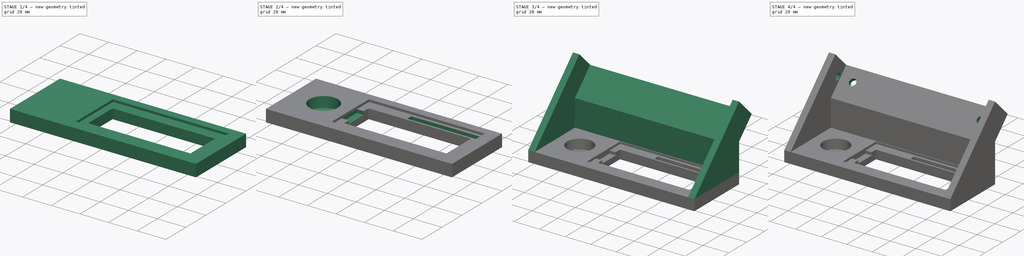
[diagram: build sequence overview — one tinted view per stage of 4, left to right]
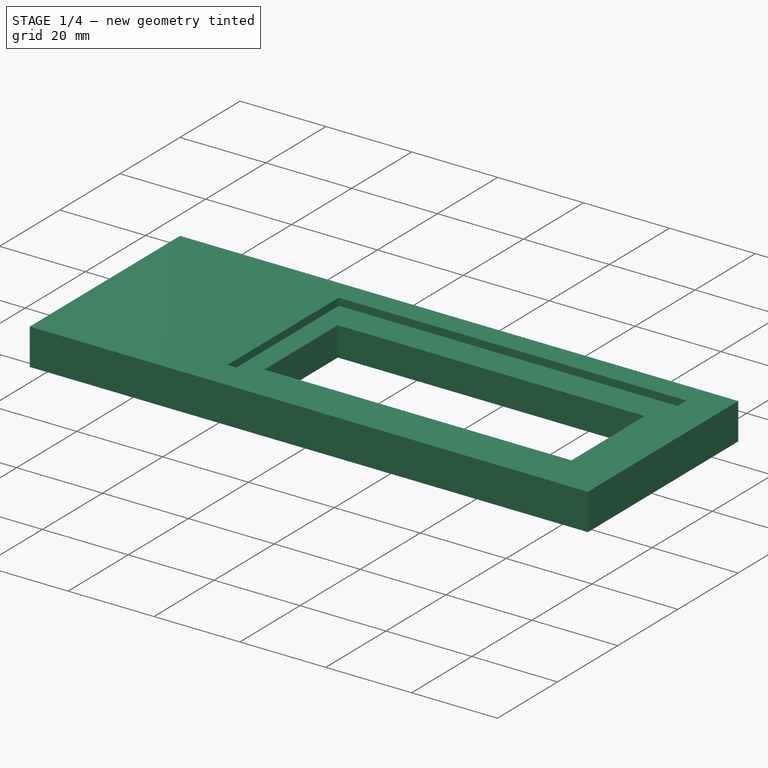
[diagram: stage 1 of 4 — iso view after this stage's code; geometry added in this stage tinted green]
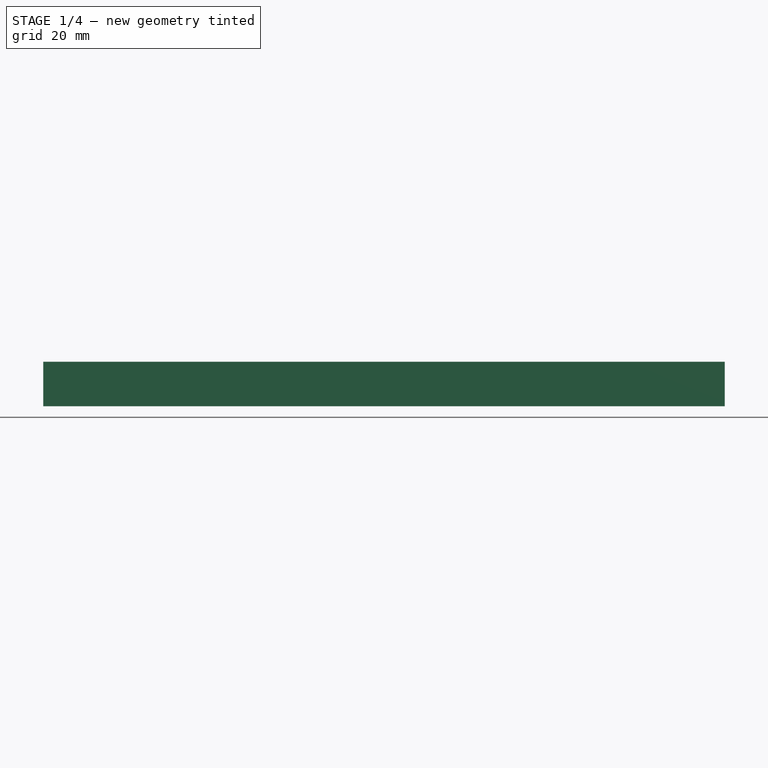
[diagram: stage 1 of 4 — front view after this stage's code; geometry added in this stage tinted green]
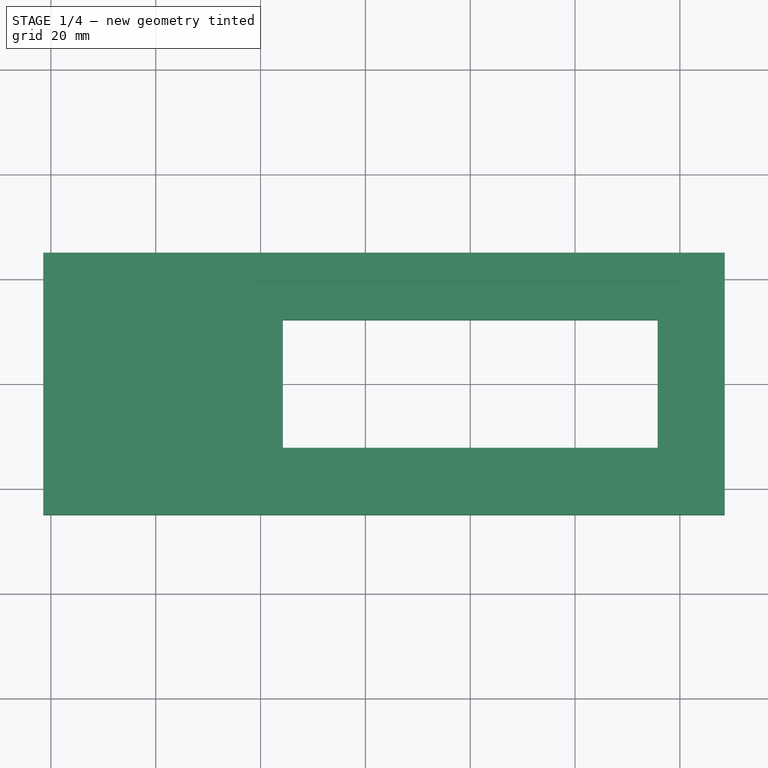
[diagram: stage 1 of 4 — top view after this stage's code; geometry added in this stage tinted green]
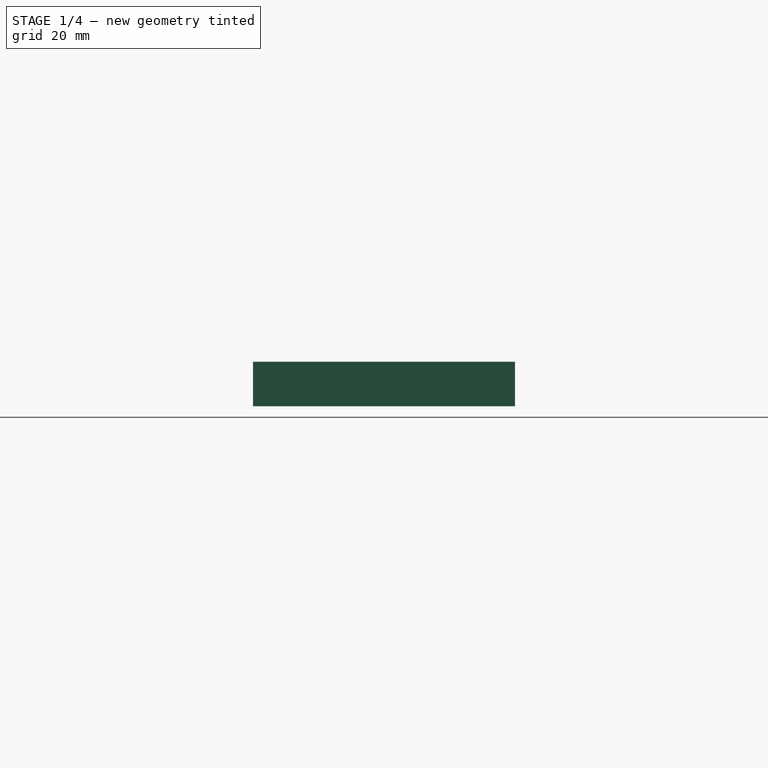
[diagram: stage 1 of 4 — right view after this stage's code; geometry added in this stage tinted green]
FCSTD DOCUMENT  (FreeCAD 0.20R29177 (Git))
Label: HMI screen button
License: All rights reserved
LicenseURL: http://en.wikipedia.org/wiki/All_rights_reserved
objects: Sketcher::SketchObject×9, PartDesign::Pocket×6, PartDesign::Pad×2, PartDesign::Hole×1, PartDesign::Body×1
note: 28 computed .brp shape members not serialized (recipe doc carries the construction recipe); baked Part::Feature solids carry a one-line shape summary decoded from their .brp

FEATURE [Sketcher::SketchObject] Sketch
  FullyConstrained = true
  MapMode = 5
  Support = -> [XY_Plane]
  sketch-geometry (12):
    g0: LineSegment StartX=-35.75 StartY=-12.2 StartZ=0 EndX=-35.75 EndY=12.2 EndZ=0
    g1: LineSegment StartX=-35.75 StartY=12.2 StartZ=0 EndX=35.75 EndY=12.2 EndZ=0
    g2: LineSegment StartX=35.75 StartY=12.2 StartZ=0 EndX=35.75 EndY=-12.2 EndZ=0
    g3: LineSegment StartX=35.75 StartY=-12.2 StartZ=0 EndX=-35.75 EndY=-12.2 EndZ=0
    g4: GeomPoint X=0 Y=0 Z=0
    g5: GeomPoint X=0 Y=0 Z=0
    g6: LineSegment StartX=48.55 StartY=25 StartZ=0 EndX=-81.45 EndY=25 EndZ=0
    g7: LineSegment StartX=-81.45 StartY=25 StartZ=0 EndX=-81.45 EndY=-25 EndZ=0
    g8: LineSegment StartX=-81.45 StartY=-25 StartZ=0 EndX=48.55 EndY=-25 EndZ=0
    g9: LineSegment StartX=48.55 StartY=-25 StartZ=0 EndX=48.55 EndY=25 EndZ=0
    g10: LineSegment StartX=35.75 StartY=12.2 StartZ=0 EndX=35.75 EndY=25 EndZ=0
    g11: LineSegment StartX=35.75 StartY=12.2 StartZ=0 EndX=48.55 EndY=12.2 EndZ=0
  constraints (30):
    c: Coincident(g0,g1)
    c: Coincident(g1,g2)
    c: Coincident(g2,g3)
    c: Coincident(g3,g0)
    c: Horizontal(g1)
    c: Horizontal(g3)
    c: Vertical(g0)
    c: Vertical(g2)
    c: Symmetric(g1,g0,g4)
    c: Coincident(g4,g-1)
    c: Coincident(g5,g4)
    c: DistanceX(g1,g1) = 71.5
    c: DistanceY(g2,g2) = 24.4
    c: Coincident(g6,g7)
    c: Coincident(g7,g8)
    c: Coincident(g8,g9)
    c: Coincident(g9,g6)
    c: Horizontal(g6)
    c: Horizontal(g8)
    c: Vertical(g7)
    c: DistanceY(g9,g9) = 50
    c: DistanceX(g6,g6) = 130
    c: Symmetric(g6,g8,g-1)
    c: Coincident(g10,g1)
    c: PointOnObject(g10,g6)
    c: Vertical(g10)
    c: Coincident(g11,g1)
    c: PointOnObject(g11,g9)
    c: Horizontal(g11)
    c: Equal(g10,g11)
FEATURE [PartDesign::Pad] Pad
  Direction = (0,0,1)
  Length = 8.5
  Length2 = 10
  Profile = -> Sketch
  ReferenceAxis = -> Sketch [N_Axis]
  Reversed = true
  Type = 0
FEATURE [Sketcher::SketchObject] Sketch001
  ExternalGeometry = -> [Pad]
  FullyConstrained = true
  MapMode = 5
  Support = -> [XY_Plane]
  sketch-geometry (4):
    g0: LineSegment StartX=-40.65 StartY=19.5 StartZ=0 EndX=40.35 EndY=19.5 EndZ=0
    g1: LineSegment StartX=40.35 StartY=19.5 StartZ=0 EndX=40.35 EndY=-17.5 EndZ=0
    g2: LineSegment StartX=40.35 StartY=-17.5 StartZ=0 EndX=-40.65 EndY=-17.5 EndZ=0
    g3: LineSegment StartX=-40.65 StartY=-17.5 StartZ=0 EndX=-40.65 EndY=19.5 EndZ=0
  constraints (12):
    c: Coincident(g0,g1)
    c: Coincident(g1,g2)
    c: Coincident(g2,g3)
    c: Coincident(g3,g0)
    c: Horizontal(g0)
    c: Horizontal(g2)
    c: Vertical(g1)
    c: Vertical(g3)
    c: DistanceX(g0,g0) = 81
    c: DistanceY(g1,g1) = 37
    c: DistanceY(g-3,g0) = 7.3
    c: DistanceX(g-3,g0) = 4.6
FEATURE [PartDesign::Pocket] Pocket
  BaseFeature = -> Pad
  Direction = (0,0,-1)
  Length = 1.7
  Length2 = 5
  Profile = -> Sketch001
  ReferenceAxis = -> Sketch001 [N_Axis]
  Type = 0
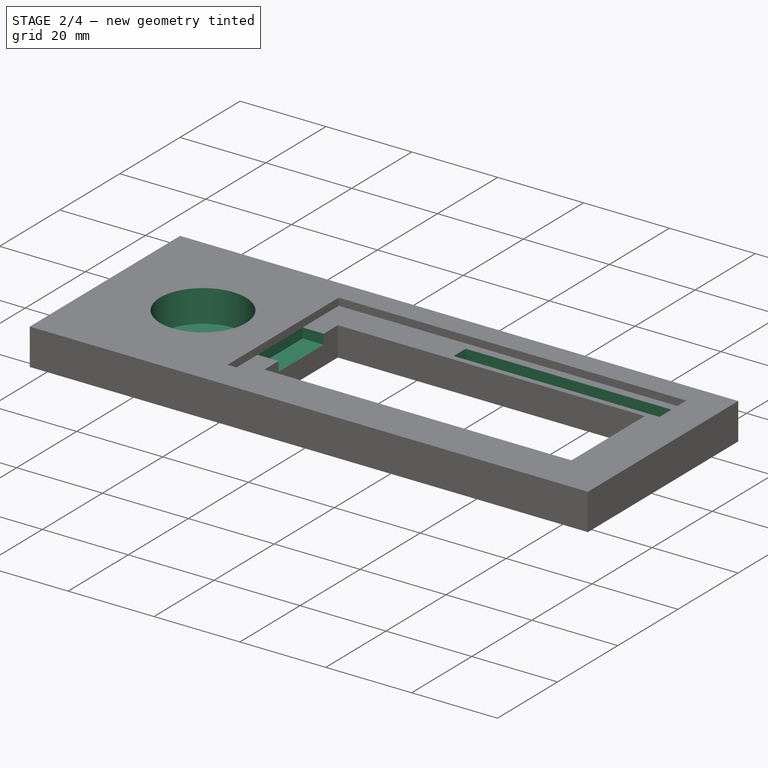
[diagram: stage 2 of 4 — iso view after this stage's code; geometry added in this stage tinted green]
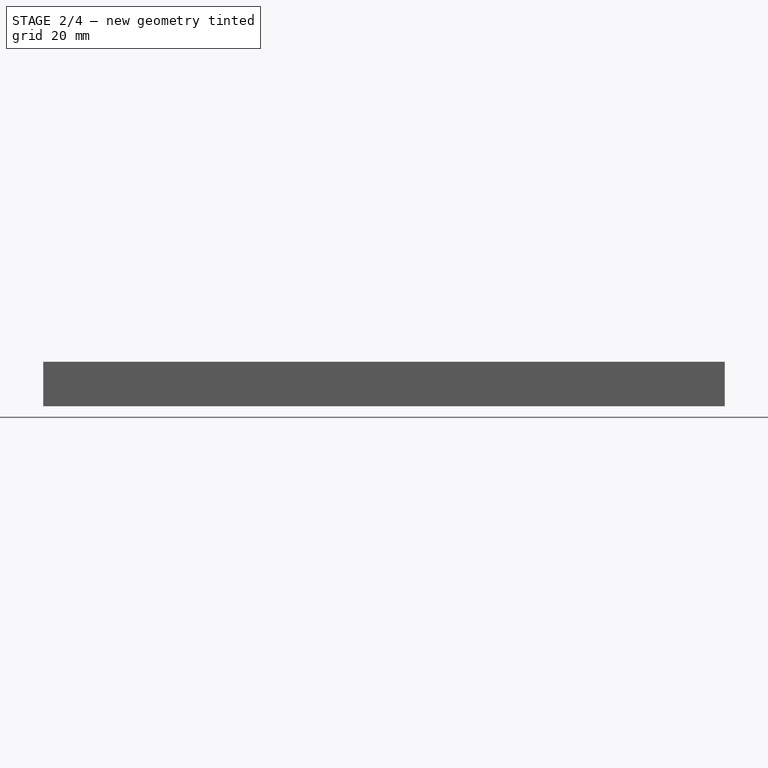
[diagram: stage 2 of 4 — front view after this stage's code; geometry added in this stage tinted green]
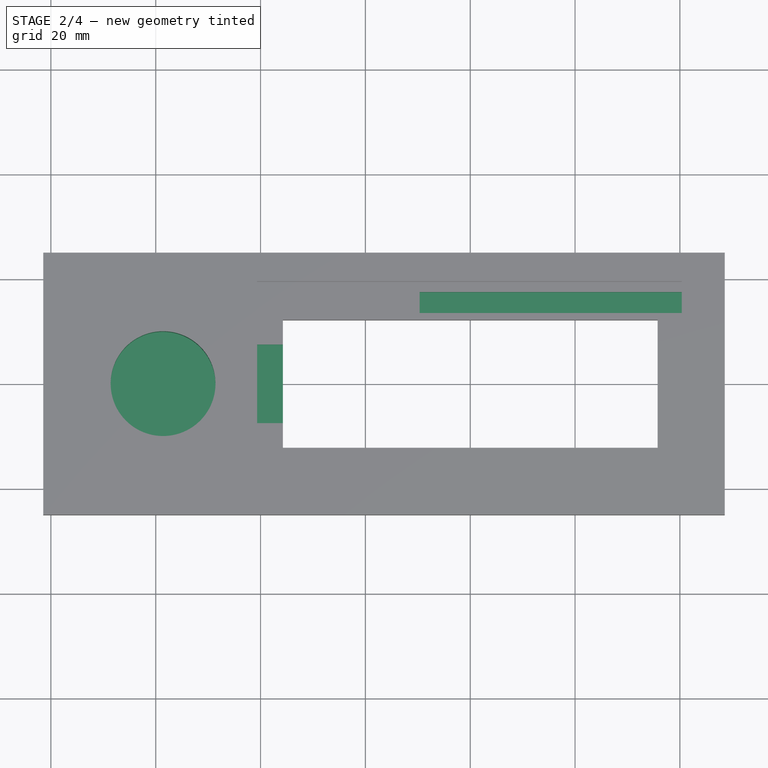
[diagram: stage 2 of 4 — top view after this stage's code; geometry added in this stage tinted green]
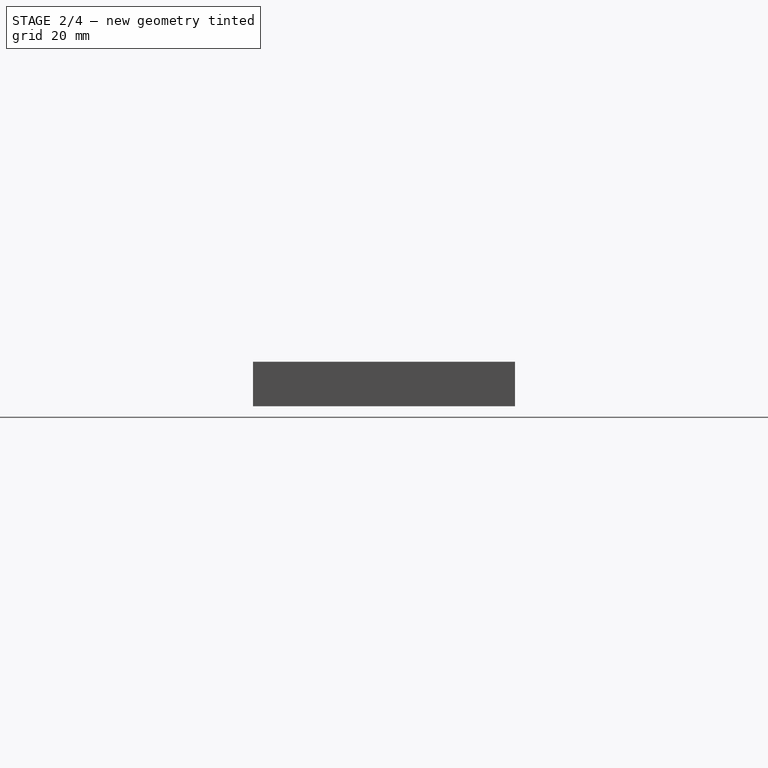
[diagram: stage 2 of 4 — right view after this stage's code; geometry added in this stage tinted green]
FEATURE [Sketcher::SketchObject] Sketch002
  ExternalGeometry = -> [Pocket]
  FullyConstrained = false
  MapMode = 5
  Support = -> [XY_Plane]
  sketch-geometry (8):
    g0: LineSegment StartX=-40.65 StartY=7.5 StartZ=0 EndX=-33.2805 EndY=7.5 EndZ=0
    g1: LineSegment StartX=-33.2805 StartY=7.5 StartZ=0 EndX=-33.2805 EndY=-7.5 EndZ=0
    g2: LineSegment StartX=-33.2805 StartY=-7.5 StartZ=0 EndX=-40.65 EndY=-7.5 EndZ=0
    g3: LineSegment StartX=-40.65 StartY=-7.5 StartZ=0 EndX=-40.65 EndY=7.5 EndZ=0
    g4: LineSegment StartX=40.35 StartY=17.5 StartZ=0 EndX=-9.65 EndY=17.5 EndZ=0
    g5: LineSegment StartX=-9.65 StartY=17.5 StartZ=0 EndX=-9.65 EndY=13.5 EndZ=0
    g6: LineSegment StartX=-9.65 StartY=13.5 StartZ=0 EndX=40.35 EndY=13.5 EndZ=0
    g7: LineSegment StartX=40.35 StartY=13.5 StartZ=0 EndX=40.35 EndY=17.5 EndZ=0
  constraints (19):
    c: Coincident(g0,g1)
    c: Coincident(g1,g2)
    c: Coincident(g2,g3)
    c: Coincident(g3,g0)
    c: Horizontal(g0)
    c: Horizontal(g2)
    c: Vertical(g3)
    c: DistanceY(g1,g1) = 15
    c: Symmetric(g1,g0,g-1)
    c: Coincident(g4,g5)
    c: Coincident(g5,g6)
    c: Coincident(g6,g7)
    c: Coincident(g7,g4)
    c: Horizontal(g4)
    c: Horizontal(g6)
    c: Vertical(g5)
    c: Vertical(g7)
    c: DistanceY(g5,g5) = 4
    c: DistanceX(g6,g6) = 50
FEATURE [PartDesign::Pocket] Pocket001
  BaseFeature = -> Pocket
  Direction = (0,0,-1)
  Length = 4
  Length2 = 5
  Profile = -> Sketch002
  ReferenceAxis = -> Sketch002 [N_Axis]
  Type = 0
FEATURE [Sketcher::SketchObject] Sketch003
  ExternalGeometry = -> [Pocket001]
  FullyConstrained = true
  MapMode = 5
  Support = -> [XY_Plane]
  sketch-geometry (3):
    g0: Circle CenterX=-58.6 CenterY=0 CenterZ=0 NormalX=0 NormalY=0 NormalZ=1 AngleXU=0 Radius=10
    g1: LineSegment StartX=-81.45 StartY=0 StartZ=0 EndX=-58.6 EndY=0 EndZ=0
    g2: LineSegment StartX=-58.6 StartY=0 StartZ=0 EndX=-35.75 EndY=0 EndZ=0
  constraints (9):
    c: PointOnObject(g0,g-1)
    c: Diameter(g0) = 20
    c: PointOnObject(g1,g-3)
    c: Coincident(g1,g0)
    c: Horizontal(g1)
    c: Coincident(g2,g0)
    c: PointOnObject(g2,g-4)
    c: Horizontal(g2)
    c: Equal(g2,g1)
FEATURE [PartDesign::Pocket] Pocket002
  BaseFeature = -> Pocket001
  Direction = (0,0,-1)
  Length = 7.5
  Length2 = 5
  Profile = -> Sketch003
  ReferenceAxis = -> Sketch003 [N_Axis]
  Type = 0
  expr: Length = 8.5 - 1
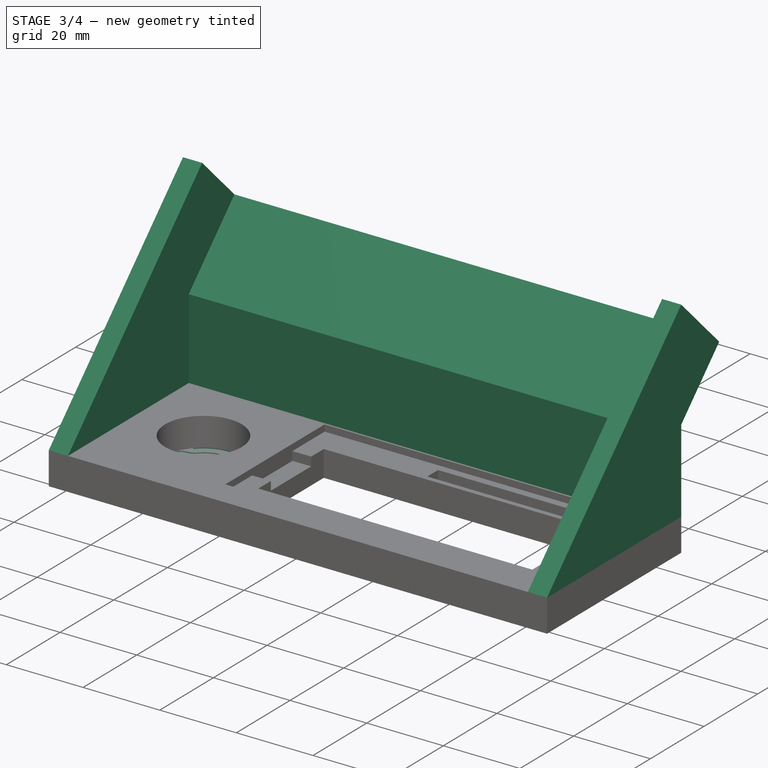
[diagram: stage 3 of 4 — iso view after this stage's code; geometry added in this stage tinted green]
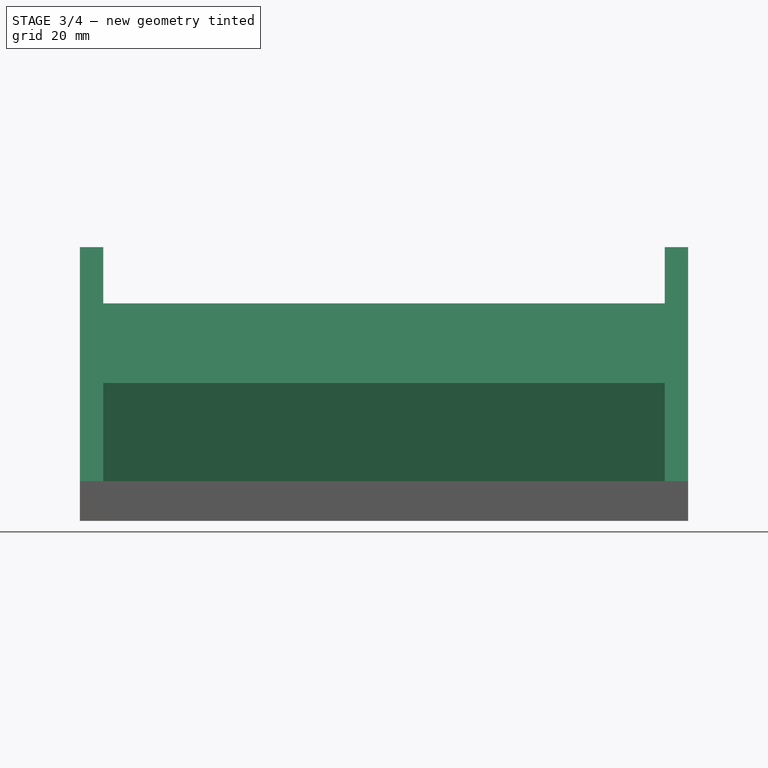
[diagram: stage 3 of 4 — front view after this stage's code; geometry added in this stage tinted green]
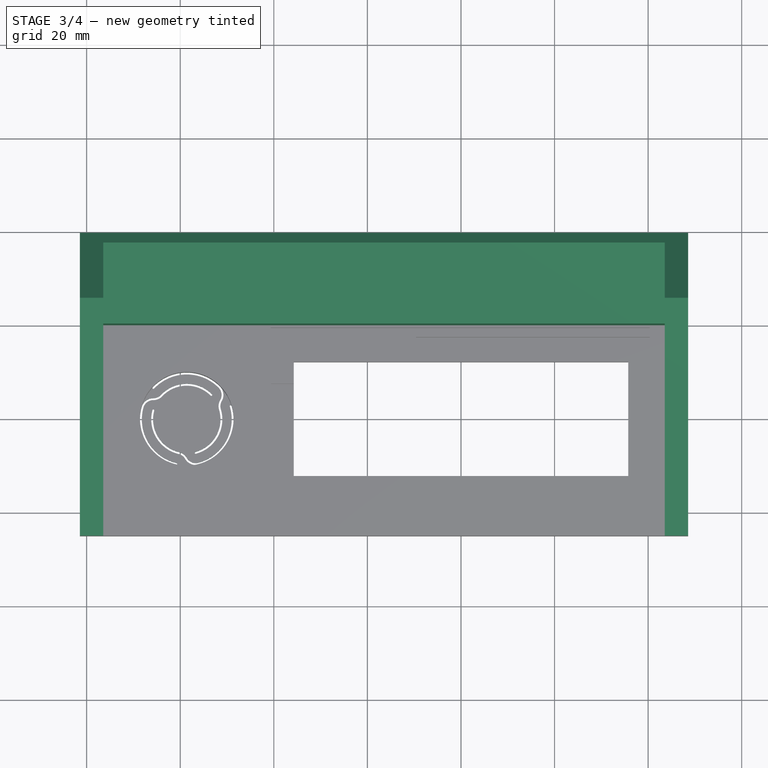
[diagram: stage 3 of 4 — top view after this stage's code; geometry added in this stage tinted green]
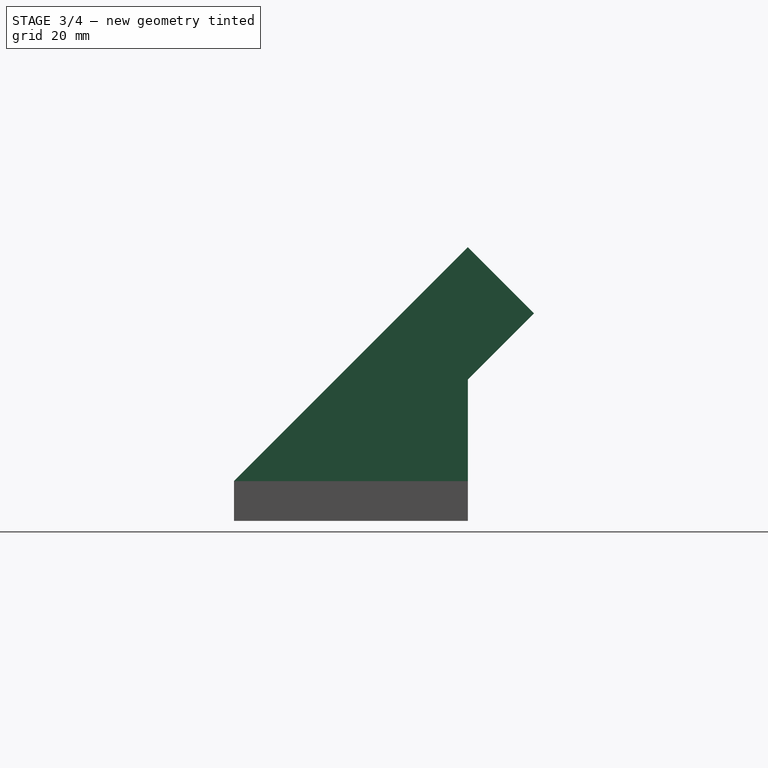
[diagram: stage 3 of 4 — right view after this stage's code; geometry added in this stage tinted green]
FEATURE [Sketcher::SketchObject] Sketch004
  ExternalGeometry = -> [Pocket002]
  FullyConstrained = false
  MapMode = 5
  Support = -> [XY_Plane]
  sketch-geometry (40):
    g0: LineSegment StartX=-58.6 StartY=-1.474e-13 StartZ=0 EndX=-58.6 EndY=9.6 EndZ=0
    g1: ArcOfCircle CenterX=-58.6 CenterY=-1.474e-13 CenterZ=0 NormalX=0 NormalY=0 NormalZ=1 AngleXU=0 Radius=7.6 StartAngle=0.784469 EndAngle=2.38574
    g2: LineSegment StartX=-49 StartY=0 StartZ=0 EndX=-48.6 EndY=0 EndZ=0
    g3: ArcOfCircle CenterX=-53.3625 CenterY=5.22772 CenterZ=0 NormalX=0 NormalY=0 NormalZ=1 AngleXU=0 Radius=0.2 StartAngle=3.92606 EndAngle=7.06765
    g4: LineSegment StartX=-51 StartY=0 StartZ=0 EndX=-51.4 EndY=0 EndZ=0
    g5: LineSegment StartX=-51 StartY=0 StartZ=0 EndX=-49 EndY=0 EndZ=0
    g6: Circle CenterX=-58.6 CenterY=-1.474e-13 CenterZ=0 NormalX=0 NormalY=0 NormalZ=1 AngleXU=0 Radius=9.6
    g7: Circle CenterX=-58.6 CenterY=-1.474e-13 CenterZ=0 NormalX=0 NormalY=0 NormalZ=1 AngleXU=0 Radius=7.6
    g8: ArcOfCircle CenterX=-49.213 CenterY=2.815 CenterZ=0 NormalX=0 NormalY=0 NormalZ=1 AngleXU=0 Radius=0.2 StartAngle=0.291349 EndAngle=3.43294
    g9: ArcOfCircle CenterX=-49.213 CenterY=2.815 CenterZ=0 NormalX=0 NormalY=0 NormalZ=1 AngleXU=0 Radius=2.2 StartAngle=2.61493 EndAngle=3.43294
    g10: ArcOfCircle CenterX=-58.6 CenterY=-1.474e-13 CenterZ=0 NormalX=0 NormalY=0 NormalZ=1 AngleXU=0 Radius=9.6 StartAngle=4.97326 EndAngle=6.57453
    g11: ArcOfCircle CenterX=-58.6 CenterY=-1.474e-13 CenterZ=0 NormalX=0 NormalY=0 NormalZ=1 AngleXU=0 Radius=7.6 StartAngle=4.97326 EndAngle=6.57453
    g12: ArcOfCircle CenterX=-49.213 CenterY=2.815 CenterZ=0 NormalX=0 NormalY=0 NormalZ=1 AngleXU=0 Radius=2.6 StartAngle=2.61493 EndAngle=3.43294
    g13: Circle CenterX=-58.6 CenterY=-1.474e-13 CenterZ=0 NormalX=0 NormalY=0 NormalZ=1 AngleXU=0 Radius=7.2
    g14: ArcOfCircle CenterX=-56.6914 CenterY=-7.14963 CenterZ=0 NormalX=0 NormalY=0 NormalZ=1 AngleXU=0 Radius=0.2 StartAngle=1.83167 EndAngle=4.97326
    g15: ArcOfCircle CenterX=-56.6914 CenterY=-7.14963 CenterZ=0 NormalX=0 NormalY=0 NormalZ=1 AngleXU=0 Radius=2.2 StartAngle=3.66213 EndAngle=4.97326
    g16: ArcOfCircle CenterX=-60.8556 CenterY=-9.53688 CenterZ=0 NormalX=0 NormalY=0 NormalZ=1 AngleXU=0 Radius=0.2 StartAngle=4.48014 EndAngle=7.62173
    g17: ArcOfCircle CenterX=-60.8556 CenterY=-9.53688 CenterZ=0 NormalX=0 NormalY=0 NormalZ=1 AngleXU=0 Radius=2.6 StartAngle=0.520535 EndAngle=1.33855
    g18: ArcOfCircle CenterX=-58.6 CenterY=-1.474e-13 CenterZ=0 NormalX=0 NormalY=0 NormalZ=1 AngleXU=0 Radius=7.2 StartAngle=4.97326 EndAngle=6.57453
    g19: ArcOfCircle CenterX=-60.8556 CenterY=-9.53688 CenterZ=0 NormalX=0 NormalY=0 NormalZ=1 AngleXU=0 Radius=2.2 StartAngle=0.520535 EndAngle=1.33855
    g20: ArcOfCircle CenterX=-53.3625 CenterY=5.22772 CenterZ=0 NormalX=0 NormalY=0 NormalZ=1 AngleXU=0 Radius=2.2 StartAngle=5.75652 EndAngle=7.06765
    g21: LineSegment StartX=-51.4607 StartY=4.12189 StartZ=0 EndX=-58.6 EndY=-1.474e-13 EndZ=0
    g22: LineSegment StartX=-58.6 StartY=-8.24379 StartZ=0 EndX=-58.6 EndY=-1.474e-13 EndZ=0
    g23: ArcOfCircle CenterX=-65.7314 CenterY=6.72188 CenterZ=0 NormalX=0 NormalY=0 NormalZ=1 AngleXU=0 Radius=0.2 StartAngle=2.38574 EndAngle=5.52734
    g24: ArcOfCircle CenterX=-58.6 CenterY=-1.474e-13 CenterZ=0 NormalX=0 NormalY=0 NormalZ=1 AngleXU=0 Radius=9.6 StartAngle=2.87886 EndAngle=4.48014
    g25: ArcOfCircle CenterX=-65.7314 CenterY=6.72188 CenterZ=0 NormalX=0 NormalY=0 NormalZ=1 AngleXU=0 Radius=2.6 StartAngle=4.70933 EndAngle=5.52734
    g26: ArcOfCircle CenterX=-65.7461 CenterY=1.9219 CenterZ=0 NormalX=0 NormalY=0 NormalZ=1 AngleXU=0 Radius=0.2 StartAngle=6.02046 EndAngle=9.16205
    g27: ArcOfCircle CenterX=-65.7461 CenterY=1.9219 CenterZ=0 NormalX=0 NormalY=0 NormalZ=1 AngleXU=0 Radius=2.2 StartAngle=1.56773 EndAngle=2.87886
    g28: LineSegment StartX=-65.7393 StartY=4.12189 StartZ=0 EndX=-58.6 EndY=-1.474e-13 EndZ=0
    g29: ArcOfCircle CenterX=-58.6 CenterY=-1.474e-13 CenterZ=0 NormalX=0 NormalY=0 NormalZ=1 AngleXU=0 Radius=7.2 StartAngle=2.87886 EndAngle=4.48014
    g30: ArcOfCircle CenterX=-58.6 CenterY=-1.474e-13 CenterZ=0 NormalX=0 NormalY=0 NormalZ=1 AngleXU=0 Radius=7.6 StartAngle=2.87886 EndAngle=4.48014
    g31: ArcOfCircle CenterX=-58.6 CenterY=-1.474e-13 CenterZ=0 NormalX=0 NormalY=0 NormalZ=1 AngleXU=0 Radius=7.2 StartAngle=0.784469 EndAngle=2.38574
    g32: ArcOfCircle CenterX=-65.7314 CenterY=6.72188 CenterZ=0 NormalX=0 NormalY=0 NormalZ=1 AngleXU=0 Radius=2.2 StartAngle=4.70933 EndAngle=5.52734
    g33: ArcOfCircle CenterX=-58.6 CenterY=-1.474e-13 CenterZ=0 NormalX=0 NormalY=0 NormalZ=1 AngleXU=0 Radius=10 StartAngle=0.784469 EndAngle=2.38574
    g34: ArcOfCircle CenterX=-58.6 CenterY=-1.474e-13 CenterZ=0 NormalX=0 NormalY=0 NormalZ=1 AngleXU=0 Radius=10 StartAngle=4.97326 EndAngle=6.57453
    g35: ArcOfCircle CenterX=-58.6 CenterY=-1.474e-13 CenterZ=0 NormalX=0 NormalY=0 NormalZ=1 AngleXU=0 Radius=10 StartAngle=2.87886 EndAngle=4.48014
    g36: ArcOfCircle CenterX=-58.6 CenterY=-1.474e-13 CenterZ=0 NormalX=0 NormalY=0 NormalZ=1 AngleXU=0 Radius=9.6 StartAngle=0.784469 EndAngle=2.38574
    g37: ArcOfCircle CenterX=-53.3625 CenterY=5.22772 CenterZ=0 NormalX=0 NormalY=0 NormalZ=1 AngleXU=0 Radius=2.6 StartAngle=5.75652 EndAngle=7.06765
    g38: ArcOfCircle CenterX=-65.7461 CenterY=1.9219 CenterZ=0 NormalX=0 NormalY=0 NormalZ=1 AngleXU=0 Radius=2.6 StartAngle=1.56773 EndAngle=2.87886
    g39: ArcOfCircle CenterX=-56.6914 CenterY=-7.14963 CenterZ=0 NormalX=0 NormalY=0 NormalZ=1 AngleXU=0 Radius=2.6 StartAngle=3.66213 EndAngle=4.97326
  constraints (102):
    c: Vertical(g0)
    c: PointOnObject(g2,g-1)
    c: Horizontal(g2)
    c: Horizontal(g4)
    c: DistanceX(g2,g2) = 0.4
    c: Coincident(g5,g4)
    c: Coincident(g5,g2)
    c: Horizontal(g5)
    c: Equal(g4,g2)
    c: DistanceX(g5,g5) = 2
    c: Tangent(g1,g3) = -1.5708
    c: PointOnObject(g2,g6)
    c: PointOnObject(g4,g7)
    c: Coincident(g9,g8)
    c: Tangent(g9,g7) = 1.5708
    c: Tangent(g8,g6) = 1.5708
    c: Coincident(g8,g10)
    c: Coincident(g11,g9)
    c: Coincident(g12,g8)
    c: PointOnObject(g4,g13)
    c: Tangent(g12,g13) = 1.5708
    c: Tangent(g3,g13) = 1.5708
    c: Coincident(g0,g1)
    c: Coincident(g0,g6)
    c: Coincident(g0,g7)
    c: Coincident(g0,g10)
    c: Coincident(g0,g11)
    c: Coincident(g0,g13)
    c: Coincident(g0,g-3)
    c: Tangent(g8,g-3) = -1.5708
    c: Coincident(g15,g14)
    c: Tangent(g15,g6) = -1.5708
    c: Coincident(g15,g10)
    c: Coincident(g17,g16)
    c: Tangent(g17,g13) = 1.5708
    c: Tangent(g15,g17) = 1.5708
    c: Coincident(g18,g1)
    c: Coincident(g18,g12)
    c: Tangent(g14,g7) = -1.5708
    c: Coincident(g19,g16)
    c: Tangent(g19,g7) = 1.5708
    c: Coincident(g20,g3)
    c: Tangent(g20,g6) = -1.5708
    c: Tangent(g12,g20) = 1.5708
    c: Tangent(g16,g6) = 1.5708
    c: Tangent(g16,g-3) = -1.5708
    c: Coincident(g11,g14)
    c: Coincident(g12,g20)
    c: Coincident(g21,g12)
    c: Coincident(g21,g1)
    c: Angle(g21,g0) = 1.0472
    c: Coincident(g22,g15)
    c: Coincident(g22,g1)
    c: Angle(g22,g21) = 2.0944
    c: Coincident(g24,g1)
    c: Coincident(g24,g16)
    c: Tangent(g23,g6) = 1.5708
    c: Tangent(g23,g-3) = -1.5708
    c: Coincident(g25,g23)
    c: Coincident(g27,g26)
    c: Tangent(g25,g27) = 1.5708
    c: Coincident(g28,g25)
    c: Coincident(g28,g1)
    c: Angle(g0,g28) = 1.0472
    c: Tangent(g27,g6) = -1.5708
    c: Tangent(g25,g13) = 1.5708
    c: Coincident(g24,g27)
    c: Coincident(g29,g1)
    c: Coincident(g29,g17)
    c: Coincident(g30,g1)
    c: Coincident(g30,g19)
    c: Tangent(g26,g7) = -1.5708
    c: Tangent(g26,g13) = 1.5708
    c: Coincident(g31,g1)
    c: Coincident(g31,g3)
    c: Coincident(g31,g25)
    c: Coincident(g32,g23)
    c: Tangent(g32,g7) = 1.5708
    c: Coincident(g1,g32)
    c: Coincident(g33,g1)
    c: Coincident(g33,g23)
    c: Coincident(g34,g1)
    c: Coincident(g34,g8)
    c: Coincident(g35,g1)
    c: Coincident(g35,g16)
    c: Tangent(g14,g18) = 1.5708
    c: Coincident(g36,g1)
    c: Coincident(g36,g23)
    c: Coincident(g36,g20)
    c: Coincident(g26,g30)
    c: Coincident(g26,g29)
    c: Coincident(g37,g3)
    c: Coincident(g37,g33)
    c: Tangent(g37,g9) = 1.5708
    c: Coincident(g38,g26)
    c: Coincident(g35,g38)
    c: Tangent(g38,g32) = 1.5708
    c: Coincident(g39,g14)
    c: Tangent(g34,g39) = -1.5708
    c: Tangent(g39,g19) = 1.5708
    c: PointOnObject(g39,g-3)
    c: Coincident(g34,g39)
FEATURE [PartDesign::Pocket] Pocket003
  BaseFeature = -> Pocket002
  Direction = (0,0,-1)
  Length = 5
  Length2 = 5
  Profile = -> Sketch004
  ReferenceAxis = -> Sketch004 [N_Axis]
  Type = 1
FEATURE [Sketcher::SketchObject] Sketch005
  FullyConstrained = true
  MapMode = 5
  Placement = pos=(0,0,0) rot=(0.57735,0.57735,0.57735;2.0944rad)
  Support = -> [YZ_Plane]
  sketch-geometry (9):
    g0: LineSegment StartX=-25 StartY=0 StartZ=0 EndX=0 EndY=0 EndZ=0
    g1: LineSegment StartX=0 StartY=0 StartZ=0 EndX=25 EndY=0 EndZ=0
    g2: LineSegment StartX=-25 StartY=0 StartZ=0 EndX=10.8579 EndY=35.8579 EndZ=0
    g3: LineSegment StartX=25 StartY=0 StartZ=0 EndX=25 EndY=21.7157 EndZ=0
    g4: LineSegment StartX=10.8579 StartY=35.8579 StartZ=0 EndX=25 EndY=21.7157 EndZ=0
    g5: LineSegment StartX=10.8579 StartY=35.8579 StartZ=0 EndX=25 EndY=50 EndZ=0
    g6: LineSegment StartX=25 StartY=50 StartZ=0 EndX=39.1421 EndY=35.8579 EndZ=0
    g7: LineSegment StartX=39.1421 StartY=35.8579 StartZ=0 EndX=25 EndY=21.7157 EndZ=0
    g8: LineSegment StartX=25 StartY=21.7157 StartZ=0 EndX=45 EndY=21.7157 EndZ=0
  constraints (24):
    c: Coincident(g0,g-1)
    c: Coincident(g1,g0)
    c: Equal(g0,g1)
    c: Horizontal(g0)
    c: Horizontal(g1)
    c: DistanceX(g0,g1) = 50
    c: Coincident(g2,g0)
    c: Coincident(g3,g1)
    c: Vertical(g3)
    c: Perpendicular(g2,g4) = 4.71239
    c: Coincident(g3,g4)
    c: Coincident(g2,g5)
    c: Coincident(g5,g6)
    c: Coincident(g6,g7)
    c: Coincident(g7,g3)
    c: Parallel(g5,g2)
    c: Parallel(g5,g7)
    c: Perpendicular(g6,g5)
    c: Distance(g5) = 20
    c: Equal(g5,g6)
    c: Coincident(g8,g3)
    c: Horizontal(g8)
    c: Equal(g7,g8)
    c: Angle(g8,g7) = 0.785398
FEATURE [PartDesign::Pad] Pad001
  BaseFeature = -> Pocket003
  Direction = (1,-2e-16,3e-16)
  Length = 48.55
  Length2 = 81.45
  Profile = -> Sketch005
  ReferenceAxis = -> Sketch005 [N_Axis]
  Type = 4
FEATURE [Sketcher::SketchObject] Sketch006
  ExternalGeometry = -> [Pad001]
  FullyConstrained = true
  MapMode = 5
  Placement = pos=(0,0,0) rot=(0.57735,0.57735,0.57735;2.0944rad)
  Support = -> [YZ_Plane]
  expr: Constraints[14] = 25 - 5
  sketch-geometry (6):
    g0: LineSegment StartX=-25 StartY=0 StartZ=0 EndX=20 EndY=0 EndZ=0
    g1: LineSegment StartX=20 StartY=0 StartZ=0 EndX=20 EndY=20.9584 EndZ=0
    g2: LineSegment StartX=20 StartY=20.9584 StartZ=0 EndX=37.0208 EndY=37.9792 EndZ=0
    g3: LineSegment StartX=37.0208 StartY=37.9792 StartZ=0 EndX=25 EndY=50 EndZ=0
    g4: LineSegment StartX=25 StartY=50 StartZ=0 EndX=-25 EndY=0 EndZ=0
    g5: LineSegment StartX=39.1421 StartY=35.8579 StartZ=0 EndX=20 EndY=16.7157 EndZ=0
  constraints (18):
    c: PointOnObject(g0,g-1)
    c: PointOnObject(g0,g-1)
    c: Coincident(g0,g1)
    c: Coincident(g1,g2)
    c: Coincident(g2,g3)
    c: Coincident(g3,g4)
    c: Coincident(g4,g0)
    c: DistanceX(g0,g-1) = 25
    c: Parallel(g4,g2)
    c: Vertical(g1)
    c: Parallel(g2,g5)
    c: PointOnObject(g5,g1)
    c: Distance(g2,g5) = 3
    c: Perpendicular(g3,g2)
    c: DistanceX(g-1,g0) = 20
    c: Angle(g0,g4) = 0.785398
    c: PointOnObject(g-3,g3)
    c: Coincident(g-3,g5)
FEATURE [PartDesign::Pocket] Pocket004
  BaseFeature = -> Pad001
  Direction = (-1,2e-16,-3e-16)
  Length = 76.45
  Length2 = 43.55
  Profile = -> Sketch006
  ReferenceAxis = -> Sketch006 [N_Axis]
  Type = 4
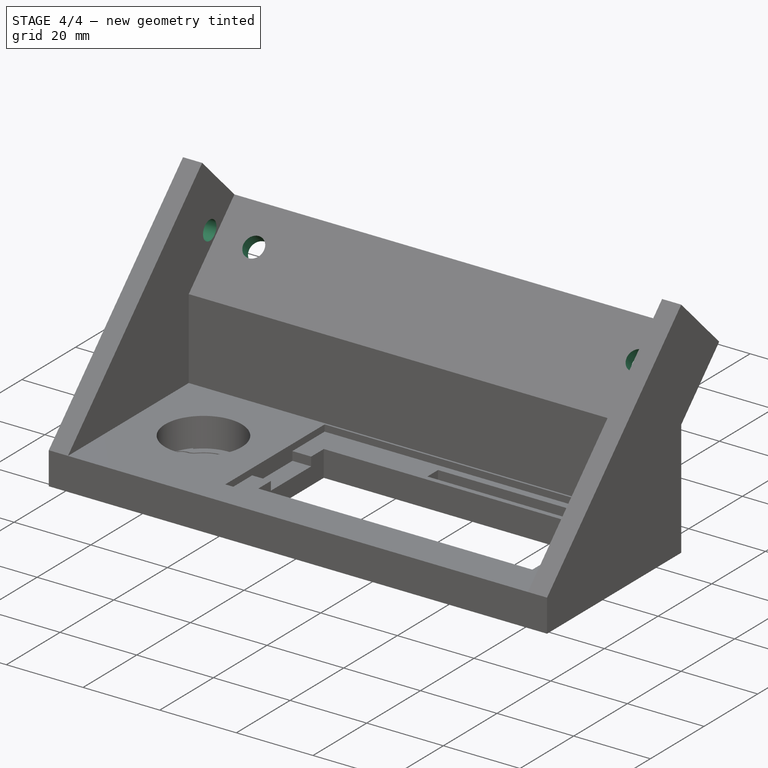
[diagram: stage 4 of 4 — iso view after this stage's code; geometry added in this stage tinted green]
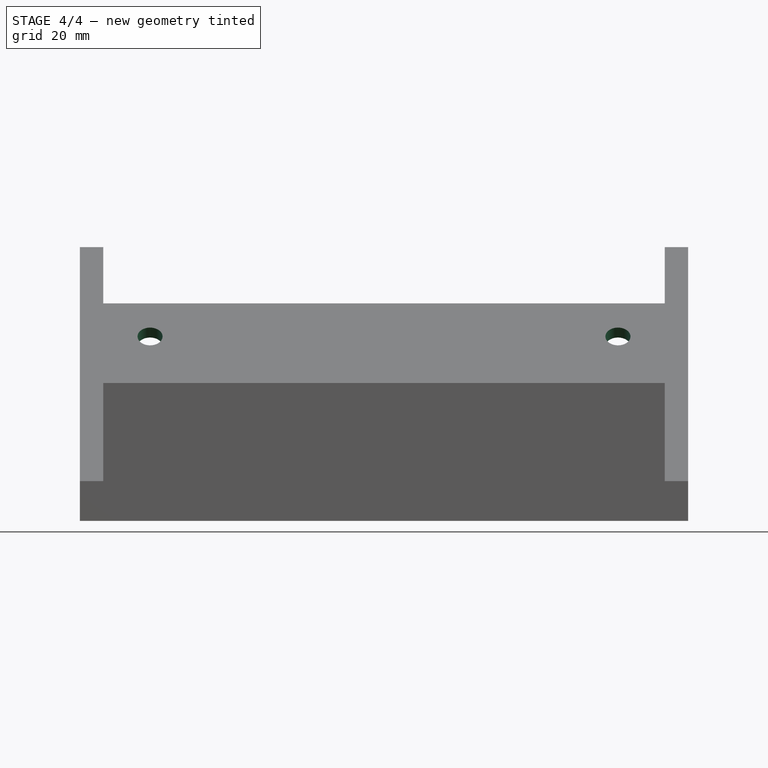
[diagram: stage 4 of 4 — front view after this stage's code; geometry added in this stage tinted green]
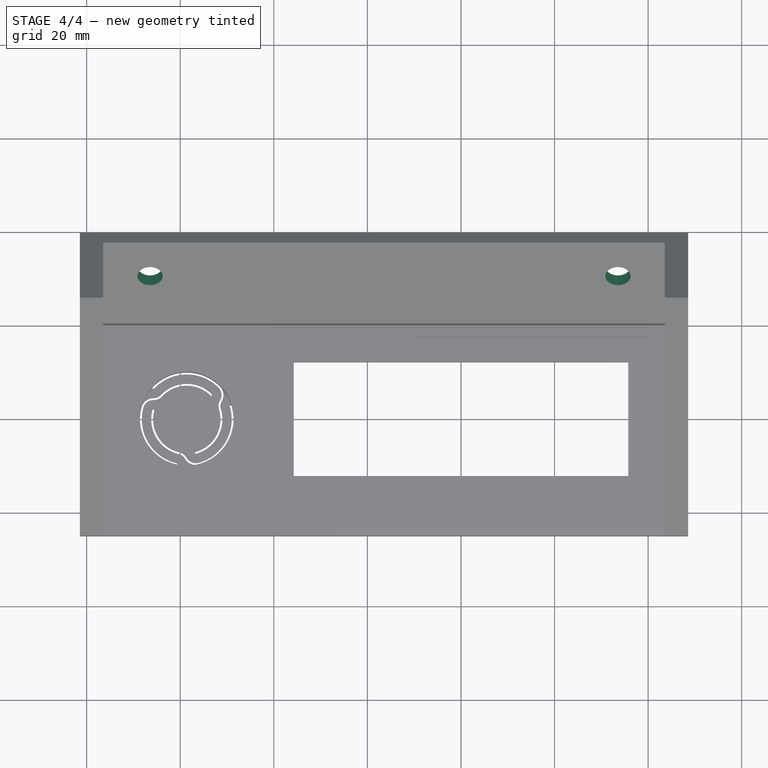
[diagram: stage 4 of 4 — top view after this stage's code; geometry added in this stage tinted green]
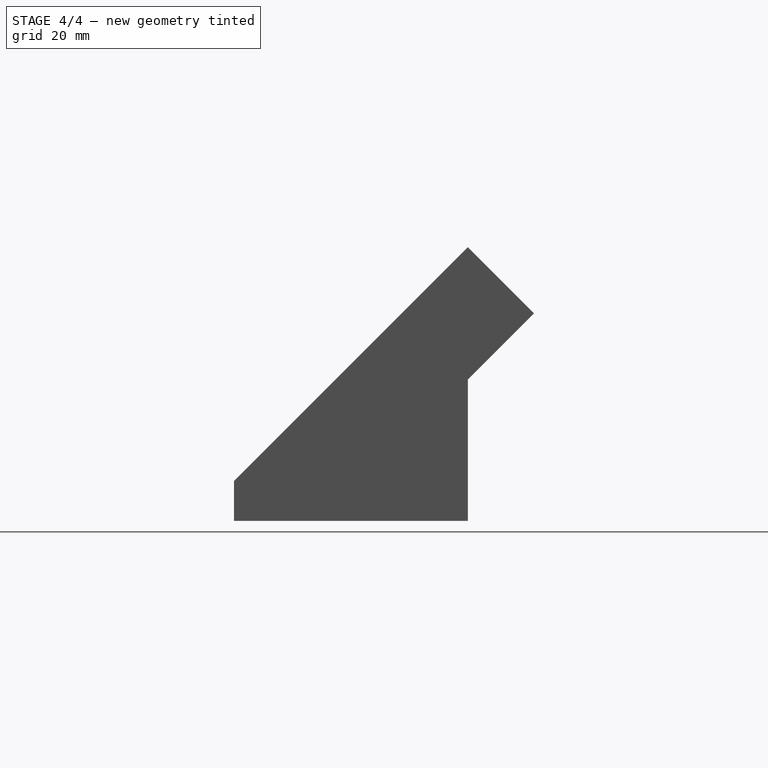
[diagram: stage 4 of 4 — right view after this stage's code; geometry added in this stage tinted green]
FEATURE [Sketcher::SketchObject] Sketch007
  ExternalGeometry = -> [Pocket004]
  FullyConstrained = false
  MapMode = 5
  Placement = pos=(-2e-16,-0.479185,0.479185) rot=(1,0,0;0.785398rad)
  Support = -> [Pocket004]
  sketch-geometry (5):
    g0: Circle CenterX=-66.45 CenterY=43.033 CenterZ=0 NormalX=0 NormalY=0 NormalZ=1 AngleXU=0 Radius=2.67744
    g1: Circle CenterX=33.55 CenterY=43.033 CenterZ=0 NormalX=0 NormalY=0 NormalZ=1 AngleXU=0 Radius=2.67744
    g2: LineSegment StartX=-66.45 StartY=43.033 StartZ=0 EndX=33.55 EndY=43.033 EndZ=0
    g3: LineSegment StartX=-76.45 StartY=53.033 StartZ=0 EndX=-66.45 EndY=43.033 EndZ=0
    g4: LineSegment StartX=33.55 StartY=43.033 StartZ=0 EndX=43.55 EndY=53.033 EndZ=0
  constraints (11):
    c: Coincident(g2,g0)
    c: Coincident(g2,g1)
    c: Horizontal(g2)
    c: Equal(g0,g1)
    c: Coincident(g3,g-3)
    c: Coincident(g3,g0)
    c: Coincident(g4,g1)
    c: Coincident(g4,g-4)
    c: Equal(g3,g4)
    c: DistanceX(g2,g2) = 100
    c: DistanceY(g4,g4) = 10
FEATURE [PartDesign::Pocket] Pocket005
  BaseFeature = -> Pocket004
  Direction = (4e-16,0.707107,-0.707107)
  Length = 5.5
  Length2 = 5
  Profile = -> Sketch007
  ReferenceAxis = -> Sketch007 [N_Axis]
  Type = 0
FEATURE [Sketcher::SketchObject] Sketch008
  ExternalGeometry = -> [Pocket005]
  FullyConstrained = true
  MapMode = 5
  Placement = pos=(0,0,0) rot=(0.57735,0.57735,0.57735;2.0944rad)
  Support = -> [YZ_Plane]
  sketch-geometry (3):
    g0: Circle CenterX=27.8284 CenterY=33.0294 CenterZ=0 NormalX=0 NormalY=0 NormalZ=1 AngleXU=0 Radius=2.5
    g1: LineSegment StartX=27.8284 StartY=33.0294 StartZ=0 EndX=34.8995 EndY=40.1005 EndZ=0
    g2: LineSegment StartX=34.8995 StartY=40.1005 StartZ=0 EndX=37.0208 EndY=37.9792 EndZ=0
  constraints (8):
    c: Diameter(g0) = 5
    c: Coincident(g1,g0)
    c: Coincident(g2,g-3)
    c: Coincident(g1,g2)
    c: Perpendicular(g-3,g2)
    c: Perpendicular(g2,g1)
    c: Distance(g1) = 10
    c: Distance(g2) = 3
FEATURE [PartDesign::Hole] Hole
  BaseFeature = -> Pocket005
  CustomThreadClearance = 0
  Depth = 315.77
  DepthType = 1
  Diameter = 5
  DrillForDepth = false
  DrillPoint = 1
  DrillPointAngle = 118
  HoleCutCountersinkAngle = 90
  HoleCutCustomValues = false
  HoleCutDepth = 0
  HoleCutDiameter = 6.1
  HoleCutType = 0
  ModelThread = false
  Profile = -> Sketch008
  Tapered = false
  TaperedAngle = 90
  ThreadClass = 0
  ThreadDepth = 315.77
  ThreadDepthType = 0
  ThreadDirection = 0
  ThreadFit = 0
  ThreadSize = 0
  ThreadType = 0
  Threaded = false
  UseCustomThreadClearance = false
FEATURE [PartDesign::Body] Body
  Group = -> [Sketch,Pad,Sketch001,Pocket,Sketch002,Pocket001,Sketch003,Pocket002,Sketch004,Pocket003,Sketch005,Pad001,Sketch006,Pocket004,Sketch007,Pocket005,Sketch008,Hole]
  Origin = -> Origin
  Tip = -> Hole
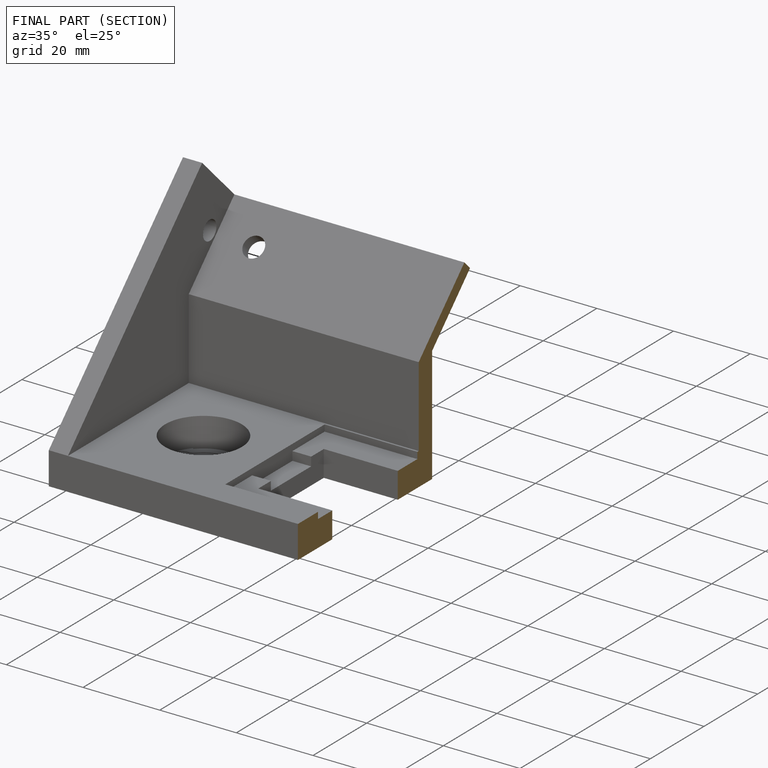
[diagram: finished part — half-section view (interior)]
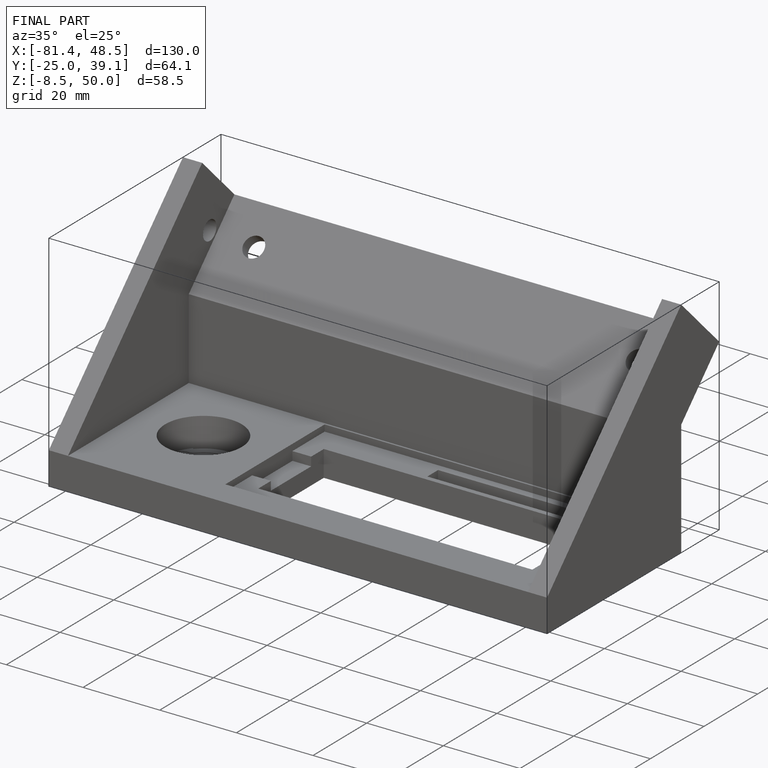
[diagram: finished part — iso view with bounding-box wireframe]
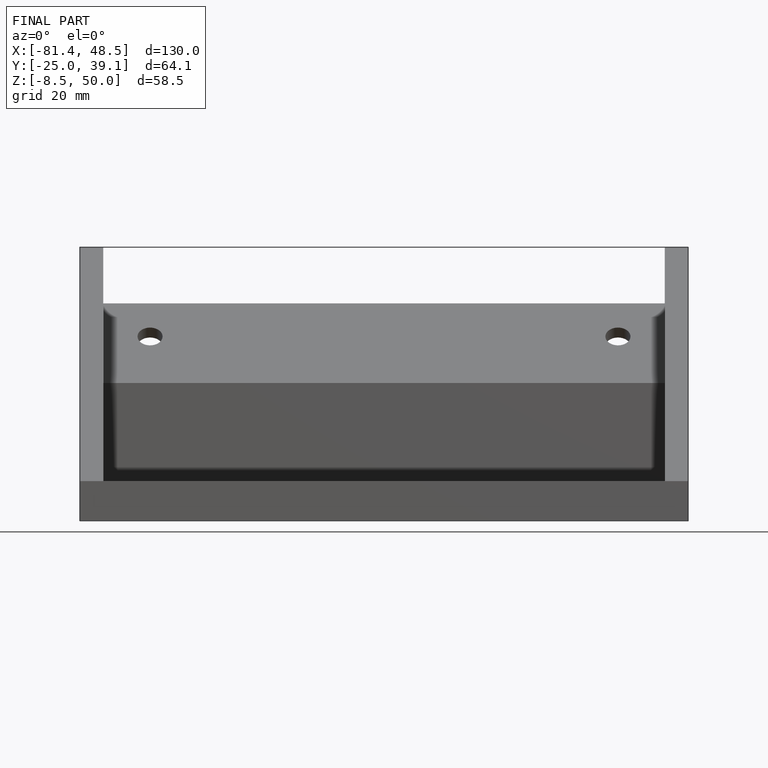
[diagram: finished part — front view with bounding-box wireframe]
